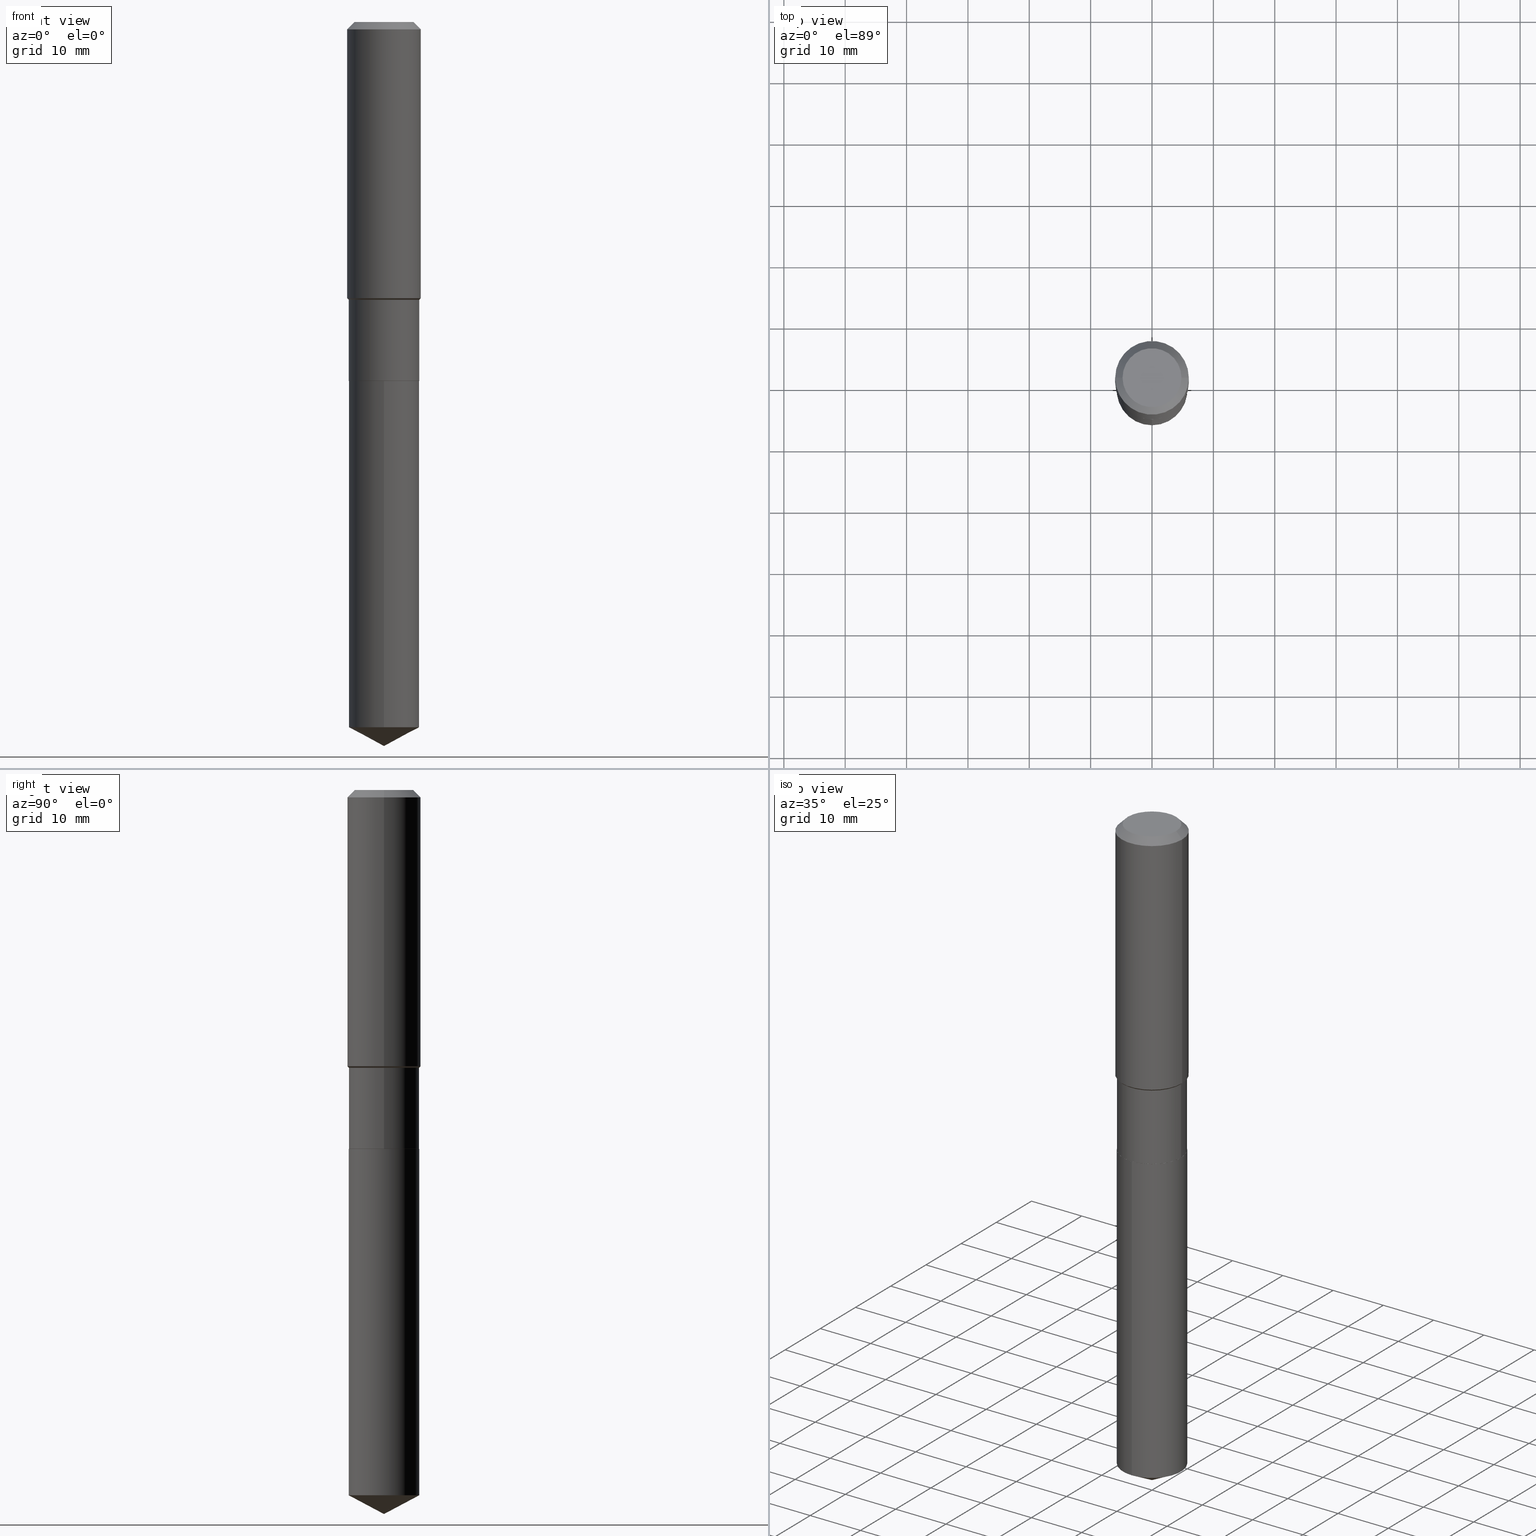
[diagram: canonical four-view strip — front | top / right | iso, engineering-drawing reading convention]
A machine part, canonical four-view strip (front | top / right | iso — engineering-drawing reading convention). The complete STEP part file that produces these views, byte-faithful:
ISO-10303-21;
HEADER;
FILE_DESCRIPTION (( 'STEP AP203' ),
    '1' );
FILE_NAME ('65245.STEP',
    '2024-04-24T21:55:22',
    ( '' ),
    ( '' ),
    'SwSTEP 2.0',
    'SolidWorks 2023',
    '' );
FILE_SCHEMA (( 'CONFIG_CONTROL_DESIGN' ));
ENDSEC;

DATA;
#1 = CARTESIAN_POINT ( 'NONE',  ( 1.608668753760977191E-15, 0.2263999999999919133, -2.303200000000000358 ) ) ;
#2 = VERTEX_POINT ( 'NONE', #14 ) ;
#3 = APPROVAL ( #155, 'UNSPECIFIED' ) ;
#4 = FACE_OUTER_BOUND ( 'NONE', #167, .T. ) ;
#5 = ORIENTED_EDGE ( 'NONE', *, *, #395, .T. ) ;
#6 = LINE ( 'NONE', #344, #192 ) ;
#7 = CARTESIAN_POINT ( 'NONE',  ( -1.580942750228060187E-15, -0.2264000000000157831, -4.525320984671840741 ) ) ;
#8 = VERTEX_POINT ( 'NONE', #369 ) ;
#9 = CONICAL_SURFACE ( 'NONE', #212, 74.04434902938349694, 1.082104136236486269 ) ;
#10 = APPROVAL_PERSON_ORGANIZATION ( #381, #3, #34 ) ;
#11 = ORIENTED_EDGE ( 'NONE', *, *, #360, .T. ) ;
#12 = EDGE_CURVE ( 'NONE', #105, #8, #23, .T. ) ;
#13 = ORIENTED_EDGE ( 'NONE', *, *, #380, .F. ) ;
#14 = CARTESIAN_POINT ( 'NONE',  ( 0.2258999999999999619, -9.619031088512858584E-15, -2.303199999999999470 ) ) ;
#15 = CALENDAR_DATE ( 2024, 24, 4 ) ;
#16 = FACE_OUTER_BOUND ( 'NONE', #315, .T. ) ;
#17 = CIRCLE ( 'NONE', #106, 0.2263999999999999624 ) ;
#18 = APPROVAL_ROLE ( '' ) ;
#19 =( CONVERSION_BASED_UNIT ( 'INCH', #336 ) LENGTH_UNIT ( ) NAMED_UNIT ( #190 ) );
#20 = APPROVAL ( #406, 'UNSPECIFIED' ) ;
#21 = DATE_TIME_ROLE ( 'creation_date' ) ;
#22 = DIRECTION ( 'NONE',  ( -2.445468806185136877E-29, 3.491481338843145188E-15, 1.000000000000000000 ) ) ;
#23 = LINE ( 'NONE', #362, #36 ) ;
#24 = ORIENTED_EDGE ( 'NONE', *, *, #108, .T. ) ;
#25 = CARTESIAN_POINT ( 'NONE',  ( 4.359048147025004325E-29, -6.223565486487904770E-15, -1.782499999999999307 ) ) ;
#26 = AXIS2_PLACEMENT_3D ( 'NONE', #308, #479, #417 ) ;
#27 = EDGE_CURVE ( 'NONE', #38, #343, #179, .T. ) ;
#28 = CIRCLE ( 'NONE', #264, 0.2258999999999999619 ) ;
#29 = CARTESIAN_POINT ( 'NONE',  ( -8.491667500582189501E-28, 1.212405371594979001E-13, 34.72437874015748349 ) ) ;
#30 = CARTESIAN_POINT ( 'NONE',  ( 1.106648869600578829E-28, -1.580013479017961313E-14, -4.525320984671841629 ) ) ;
#31 = DIRECTION ( 'NONE',  ( -2.445468806185136597E-29, 3.491481338843145583E-15, 1.000000000000000000 ) ) ;
#32 = DIRECTION ( 'NONE',  ( -6.982962677686265922E-15, -1.000000000000000000, 2.413293280622141084E-15 ) ) ;
#33 = DIRECTION ( 'NONE',  ( -2.445468806185136877E-29, 3.491481338843145188E-15, 1.000000000000000000 ) ) ;
#34 = APPROVAL_ROLE ( '' ) ;
#35 = DIRECTION ( 'NONE',  ( 1.000000000000000000, -6.982962677686266711E-15, 4.876185090822587894E-29 ) ) ;
#36 = VECTOR ( 'NONE', #175, 39.37007874015748143 ) ;
#37 = AXIS2_PLACEMENT_3D ( 'NONE', #412, #473, #299 ) ;
#38 = VERTEX_POINT ( 'NONE', #58 ) ;
#39 = DIRECTION ( 'NONE',  ( 1.000000000000000000, -6.982962677686266711E-15, 0.000000000000000000 ) ) ;
#40 = ORIENTED_EDGE ( 'NONE', *, *, #193, .F. ) ;
#41 = DIRECTION ( 'NONE',  ( 6.982962677686265922E-15, 1.000000000000000000, -3.491508799059314559E-15 ) ) ;
#42 = LINE ( 'NONE', #387, #326 ) ;
#43 = ORIENTED_EDGE ( 'NONE', *, *, #237, .F. ) ;
#44 = CARTESIAN_POINT ( 'NONE',  ( 0.000000000000000000, 0.000000000000000000, 0.000000000000000000 ) ) ;
#45 = ADVANCED_FACE ( 'NONE', ( #16 ), #477, .T. ) ;
#46 = CONICAL_SURFACE ( 'NONE', #119, 0.2263999999999999069, 0.7853981633974500554 ) ;
#47 = COORDINATED_UNIVERSAL_TIME_OFFSET ( 5, 0, .BEHIND. ) ;
#48 = CC_DESIGN_APPROVAL ( #59, ( #416 ) ) ;
#49 = ORIENTED_EDGE ( 'NONE', *, *, #101, .T. ) ;
#50 = EDGE_CURVE ( 'NONE', #354, #8, #283, .T. ) ;
#51 = CARTESIAN_POINT ( 'NONE',  ( 1.608668753760976994E-15, 0.2263999999999841972, -4.525320984671841629 ) ) ;
#52 = EDGE_LOOP ( 'NONE', ( #49, #87, #318, #220 ) ) ;
#53 = ADVANCED_FACE ( 'NONE', ( #378 ), #150, .T. ) ;
#54 = CARTESIAN_POINT ( 'NONE',  ( 1.136091445384703175E-28, -1.622037593505009449E-14, -4.645699999999999719 ) ) ;
#55 = EDGE_LOOP ( 'NONE', ( #350, #207 ) ) ;
#56 = AXIS2_PLACEMENT_3D ( 'NONE', #427, #131, #39 ) ;
#57 = ORIENTED_EDGE ( 'NONE', *, *, #429, .T. ) ;
#58 = CARTESIAN_POINT ( 'NONE',  ( 0.1889600000000000168, -1.540873453589747738E-15, 3.855188123725863225E-18 ) ) ;
#59 = APPROVAL ( #269, 'UNSPECIFIED' ) ;
#60 = DIRECTION ( 'NONE',  ( -2.445449630818674093E-29, 3.491508799059314165E-15, 1.000000000000000000 ) ) ;
#61 = ORGANIZATION ( 'UNSPECIFIED', 'UNSPECIFIED', '' ) ;
#62 = SECURITY_CLASSIFICATION_LEVEL ( 'unclassified' ) ;
#63 = FACE_OUTER_BOUND ( 'NONE', #458, .T. ) ;
#64 = DATE_AND_TIME ( #266, #202 ) ;
#65 = DIRECTION ( 'NONE',  ( 1.000000000000000000, -6.982962677686269077E-15, 0.000000000000000000 ) ) ;
#66 = EDGE_CURVE ( 'NONE', #8, #354, #383, .T. ) ;
#67 = DIRECTION ( 'NONE',  ( 1.000000000000000000, -6.982962677686265922E-15, 4.876176775795935793E-29 ) ) ;
#68 = CARTESIAN_POINT ( 'NONE',  ( 0.2362000000000002153, -7.838724753836739036E-15, -1.772699999999999054 ) ) ;
#69 = EDGE_LOOP ( 'NONE', ( #85, #403, #57, #172 ) ) ;
#70 = CARTESIAN_POINT ( 'NONE',  ( -0.2263999999999999624, -5.523031028960140857E-15, -2.302699999999999303 ) ) ;
#71 = DIRECTION ( 'NONE',  ( -2.445468806185136597E-29, 3.491481338843145583E-15, 1.000000000000000000 ) ) ;
#72 = ADVANCED_FACE ( 'NONE', ( #187 ), #332, .T. ) ;
#73 = DIRECTION ( 'NONE',  ( -2.445468806185136597E-29, 3.491481338843145583E-15, 1.000000000000000000 ) ) ;
#74 = AXIS2_PLACEMENT_3D ( 'NONE', #317, #90, #396 ) ;
#75 = AXIS2_PLACEMENT_3D ( 'NONE', #29, #60, #182 ) ;
#76 = PERSON_AND_ORGANIZATION_ROLE ( 'design_owner' ) ;
#77 = DIRECTION ( 'NONE',  ( -2.445449630818674093E-29, 3.491508799059314165E-15, 1.000000000000000000 ) ) ;
#78 = MECHANICAL_CONTEXT ( 'NONE', #325, 'mechanical' ) ;
#79 = FACE_OUTER_BOUND ( 'NONE', #55, .T. ) ;
#80 = LINE ( 'NONE', #189, #93 ) ;
#81 = ADVANCED_FACE ( 'NONE', ( #153 ), #111, .T. ) ;
#82 = LINE ( 'NONE', #239, #485 ) ;
#83 = LOCAL_TIME ( 17, 55, 22.00000000000000000, #191 ) ;
#84 = DIRECTION ( 'NONE',  ( 1.000000000000000000, -6.982962677686265922E-15, 0.000000000000000000 ) ) ;
#85 = ORIENTED_EDGE ( 'NONE', *, *, #331, .F. ) ;
#86 = DIRECTION ( 'NONE',  ( -2.445468806185136597E-29, 3.491481338843145583E-15, 1.000000000000000000 ) ) ;
#87 = ORIENTED_EDGE ( 'NONE', *, *, #331, .T. ) ;
#88 = DIRECTION ( 'NONE',  ( -0.7071067811866199593, 7.493145998870616062E-15, 0.7071067811864750752 ) ) ;
#89 = PERSON_AND_ORGANIZATION_ROLE ( 'creator' ) ;
#90 = DIRECTION ( 'NONE',  ( -2.445449630818674093E-29, 3.491508799059314165E-15, 1.000000000000000000 ) ) ;
#91 = ORIENTED_EDGE ( 'NONE', *, *, #443, .F. ) ;
#92 = ADVANCED_FACE ( 'NONE', ( #280 ), #337, .T. ) ;
#93 = VECTOR ( 'NONE', #236, 39.37007874015748143 ) ;
#94 = CIRCLE ( 'NONE', #340, 0.2263999999999999624 ) ;
#95 = CARTESIAN_POINT ( 'NONE',  ( -0.2362000000000002153, -4.511047027501882961E-15, -1.772699999999999054 ) ) ;
#96 = VERTEX_POINT ( 'NONE', #413 ) ;
#97 = ORIENTED_EDGE ( 'NONE', *, *, #66, .F. ) ;
#98 = APPROVAL_DATE_TIME ( #137, #3 ) ;
#99 = CIRCLE ( 'NONE', #177, 0.2263999999999999624 ) ;
#100 = CALENDAR_DATE ( 2024, 24, 4 ) ;
#101 = EDGE_CURVE ( 'NONE', #322, #320, #104, .T. ) ;
#102 = LINE ( 'NONE', #301, #462 ) ;
#103 = SHAPE_DEFINITION_REPRESENTATION ( #168, #203 ) ;
#104 = CIRCLE ( 'NONE', #415, 0.2263999999999999624 ) ;
#105 = VERTEX_POINT ( 'NONE', #188 ) ;
#106 = AXIS2_PLACEMENT_3D ( 'NONE', #466, #294, #65 ) ;
#107 = DATE_AND_TIME ( #15, #346 ) ;
#108 = EDGE_CURVE ( 'NONE', #105, #359, #99, .T. ) ;
#109 = LINE ( 'NONE', #323, #401 ) ;
#110 = CARTESIAN_POINT ( 'NONE',  ( 0.2361999999999999933, -1.814313362916447440E-15, -0.04724000000000028177 ) ) ;
#111 = CYLINDRICAL_SURFACE ( 'NONE', #249, 0.2263999999999999346 ) ;
#112 = CARTESIAN_POINT ( 'NONE',  ( -1.580942750228114224E-15, -0.2264000000000080115, -2.303199999999998582 ) ) ;
#113 = ORIENTED_EDGE ( 'NONE', *, *, #393, .F. ) ;
#114 =( NAMED_UNIT ( * ) PLANE_ANGLE_UNIT ( ) SI_UNIT ( $, .RADIAN. ) );
#115 = PERSON ( 'UNSPECIFIED', 'UNSPECIFIED', 'UNSPECIFIED', ('UNSPECIFIED'), ('UNSPECIFIED'), ('UNSPECIFIED') ) ;
#116 = CARTESIAN_POINT ( 'NONE',  ( 5.632403754405604963E-29, -8.041579819623531161E-15, -2.303199999999999470 ) ) ;
#117 = ADVANCED_FACE ( 'NONE', ( #79 ), #235, .F. ) ;
#118 = DIRECTION ( 'NONE',  ( -2.445468806185136597E-29, 3.491481338843145583E-15, 1.000000000000000000 ) ) ;
#119 = AXIS2_PLACEMENT_3D ( 'NONE', #166, #86, #84 ) ;
#120 = DIRECTION ( 'NONE',  ( 1.000000000000000000, -6.982962677686265922E-15, 0.000000000000000000 ) ) ;
#121 = CARTESIAN_POINT ( 'NONE',  ( 5.632403754405604963E-29, -8.041579819623531161E-15, -2.303199999999999470 ) ) ;
#122 = EDGE_CURVE ( 'NONE', #96, #359, #6, .T. ) ;
#123 = DIRECTION ( 'NONE',  ( 1.000000000000000000, -6.982962677686266711E-15, 4.876176775795935793E-29 ) ) ;
#124 = APPLICATION_PROTOCOL_DEFINITION ( 'international standard', 'config_control_design', 1994, #325 ) ;
#125 = EDGE_LOOP ( 'NONE', ( #399, #135, #91 ) ) ;
#126 = VECTOR ( 'NONE', #136, 39.37007874015748143 ) ;
#127 = DIRECTION ( 'NONE',  ( 1.000000000000000000, -6.982962677686266711E-15, 0.000000000000000000 ) ) ;
#128 = ORIENTED_EDGE ( 'NONE', *, *, #122, .T. ) ;
#129 = ADVANCED_FACE ( 'NONE', ( #358 ), #456, .T. ) ;
#130 = ORIENTED_EDGE ( 'NONE', *, *, #198, .T. ) ;
#131 = DIRECTION ( 'NONE',  ( -2.445468806185136597E-29, 3.491481338843145583E-15, 1.000000000000000000 ) ) ;
#132 = EDGE_LOOP ( 'NONE', ( #11, #448 ) ) ;
#133 = EDGE_CURVE ( 'NONE', #2, #96, #263, .T. ) ;
#134 = ORIENTED_EDGE ( 'NONE', *, *, #395, .F. ) ;
#135 = ORIENTED_EDGE ( 'NONE', *, *, #237, .T. ) ;
#136 = DIRECTION ( 'NONE',  ( -2.445449630818674093E-29, 3.491508799059314559E-15, 1.000000000000000000 ) ) ;
#137 = DATE_AND_TIME ( #452, #83 ) ;
#138 = ADVANCED_FACE ( 'NONE', ( #156 ), #486, .F. ) ;
#139 = CC_DESIGN_APPROVAL ( #20, ( #296 ) ) ;
#140 = COORDINATED_UNIVERSAL_TIME_OFFSET ( 5, 0, .BEHIND. ) ;
#141 = ADVANCED_FACE ( 'NONE', ( #481 ), #414, .T. ) ;
#142 = ORIENTED_EDGE ( 'NONE', *, *, #159, .F. ) ;
#143 = DIRECTION ( 'NONE',  ( 1.000000000000000000, -6.982962677686266711E-15, 4.876185090822587894E-29 ) ) ;
#144 = EDGE_CURVE ( 'NONE', #254, #158, #374, .T. ) ;
#145 = DIRECTION ( 'NONE',  ( -2.445449630818674093E-29, 3.491508799059314165E-15, 1.000000000000000000 ) ) ;
#146 = CIRCLE ( 'NONE', #357, 0.2361999999999999933 ) ;
#147 = CARTESIAN_POINT ( 'NONE',  ( -1.580942750228114224E-15, -0.2264000000000080115, -2.303199999999998582 ) ) ;
#148 = CARTESIAN_POINT ( 'NONE',  ( 4.359048147025004325E-29, -6.223565486487904770E-15, -1.782499999999999307 ) ) ;
#149 = DIRECTION ( 'NONE',  ( -2.445449630818674093E-29, 3.491508799059314559E-15, 1.000000000000000000 ) ) ;
#150 = CYLINDRICAL_SURFACE ( 'NONE', #26, 0.2362000000000001043 ) ;
#151 = DIRECTION ( 'NONE',  ( 1.000000000000000000, -6.982962677686266711E-15, 0.000000000000000000 ) ) ;
#152 = CC_DESIGN_DATE_AND_TIME_ASSIGNMENT ( #64, #364, ( #416 ) ) ;
#153 = FACE_OUTER_BOUND ( 'NONE', #388, .T. ) ;
#154 = VECTOR ( 'NONE', #368, 39.37007874015748143 ) ;
#155 = APPROVAL_STATUS ( 'not_yet_approved' ) ;
#156 = FACE_OUTER_BOUND ( 'NONE', #352, .T. ) ;
#157 = DIRECTION ( 'NONE',  ( -0.7071067811865486830, 7.493145998870357316E-15, 0.7071067811865462405 ) ) ;
#158 = VERTEX_POINT ( 'NONE', #112 ) ;
#159 = EDGE_CURVE ( 'NONE', #38, #252, #437, .T. ) ;
#160 = ORIENTED_EDGE ( 'NONE', *, *, #66, .T. ) ;
#161 = AXIS2_PLACEMENT_3D ( 'NONE', #185, #305, #231 ) ;
#162 = AXIS2_PLACEMENT_3D ( 'NONE', #199, #419, #275 ) ;
#163 = DIRECTION ( 'NONE',  ( -6.165590087286832874E-15, -0.8829475928589261002, 0.4694715627858920826 ) ) ;
#164 = ORIENTED_EDGE ( 'NONE', *, *, #165, .T. ) ;
#165 = EDGE_CURVE ( 'NONE', #359, #354, #379, .T. ) ;
#166 = CARTESIAN_POINT ( 'NONE',  ( 4.359048147025004325E-29, -6.223565486487904770E-15, -1.782499999999999307 ) ) ;
#167 = EDGE_LOOP ( 'NONE', ( #455, #256, #342, #13 ) ) ;
#168 = PRODUCT_DEFINITION_SHAPE ( 'NONE', 'NONE',  #389 ) ;
#169 = DIRECTION ( 'NONE',  ( -1.000000000000000000, 6.982962677686266711E-15, 0.000000000000000000 ) ) ;
#170 = ORIENTED_EDGE ( 'NONE', *, *, #380, .T. ) ;
#171 = AXIS2_PLACEMENT_3D ( 'NONE', #279, #118, #35 ) ;
#172 = ORIENTED_EDGE ( 'NONE', *, *, #144, .F. ) ;
#173 = CARTESIAN_POINT ( 'NONE',  ( 5.632403754405604963E-29, -8.041579819623531161E-15, -2.303199999999999470 ) ) ;
#174 = CARTESIAN_POINT ( 'NONE',  ( 0.2361999999999999933, -1.785387205520586782E-15, -0.04724000000000028177 ) ) ;
#175 = DIRECTION ( 'NONE',  ( -2.445468806185136877E-29, 3.491481338843145188E-15, 1.000000000000000000 ) ) ;
#176 = EDGE_CURVE ( 'NONE', #306, #480, #80, .T. ) ;
#177 = AXIS2_PLACEMENT_3D ( 'NONE', #483, #309, #451 ) ;
#178 = DIRECTION ( 'NONE',  ( 1.000000000000000000, -6.982962677686266711E-15, 0.000000000000000000 ) ) ;
#179 = LINE ( 'NONE', #174, #339 ) ;
#180 = ADVANCED_FACE ( 'NONE', ( #382 ), #311, .F. ) ;
#181 = PERSON_AND_ORGANIZATION_ROLE ( 'design_supplier' ) ;
#182 = DIRECTION ( 'NONE',  ( -6.982962677686265133E-15, -1.000000000000000000, 3.541896320645562841E-15 ) ) ;
#183 = AXIS2_PLACEMENT_3D ( 'NONE', #121, #268, #281 ) ;
#184 = AXIS2_PLACEMENT_3D ( 'NONE', #334, #370, #143 ) ;
#185 = CARTESIAN_POINT ( 'NONE',  ( 5.632403754405604963E-29, -8.041579819623531161E-15, -2.303199999999999470 ) ) ;
#186 = CARTESIAN_POINT ( 'NONE',  ( 1.136082534989431357E-28, -1.622050242778985348E-14, -4.645699999999999719 ) ) ;
#187 = FACE_OUTER_BOUND ( 'NONE', #347, .T. ) ;
#188 = CARTESIAN_POINT ( 'NONE',  ( 0.2263999999999999624, -9.620776829182280876E-15, -2.302699999999999303 ) ) ;
#189 = CARTESIAN_POINT ( 'NONE',  ( -0.2362000000000001043, 1.678301941865357380E-15, -1.161852468318209317E-29 ) ) ;
#190 = DIMENSIONAL_EXPONENTS ( 1.000000000000000000, 0.000000000000000000, 0.000000000000000000, 0.000000000000000000, 0.000000000000000000, 0.000000000000000000, 0.000000000000000000 ) ;
#191 = COORDINATED_UNIVERSAL_TIME_OFFSET ( 5, 0, .BEHIND. ) ;
#192 = VECTOR ( 'NONE', #88, 39.37007874015748143 ) ;
#193 = EDGE_CURVE ( 'NONE', #8, #200, #82, .T. ) ;
#194 = DIRECTION ( 'NONE',  ( 0.7071067811865486830, -2.468850131082269682E-15, 0.7071067811865462405 ) ) ;
#195 = ORIENTED_EDGE ( 'NONE', *, *, #12, .F. ) ;
#196 = CARTESIAN_POINT ( 'NONE',  ( 1.155239464041865506E-30, -1.649375784469511859E-16, -0.04724000000000028177 ) ) ;
#197 = ORIENTED_EDGE ( 'NONE', *, *, #165, .F. ) ;
#198 = EDGE_CURVE ( 'NONE', #354, #306, #411, .T. ) ;
#199 = CARTESIAN_POINT ( 'NONE',  ( 0.000000000000000000, 0.000000000000000000, 0.000000000000000000 ) ) ;
#200 = VERTEX_POINT ( 'NONE', #68 ) ;
#201 = AXIS2_PLACEMENT_3D ( 'NONE', #349, #253, #127 ) ;
#202 = LOCAL_TIME ( 17, 55, 22.00000000000000000, #408 ) ;
#203 = ADVANCED_BREP_SHAPE_REPRESENTATION ( '65245', ( #402, #242, #162 ), #240 ) ;
#204 = CARTESIAN_POINT ( 'NONE',  ( -0.1889600000000000168, 1.401969416799070942E-15, 3.855188123706346622E-18 ) ) ;
#205 = ORIENTED_EDGE ( 'NONE', *, *, #122, .F. ) ;
#206 = FACE_OUTER_BOUND ( 'NONE', #274, .T. ) ;
#207 = ORIENTED_EDGE ( 'NONE', *, *, #144, .T. ) ;
#208 = FACE_OUTER_BOUND ( 'NONE', #125, .T. ) ;
#209 = ORIENTED_EDGE ( 'NONE', *, *, #295, .T. ) ;
#210 = FACE_OUTER_BOUND ( 'NONE', #460, .T. ) ;
#211 = AXIS2_PLACEMENT_3D ( 'NONE', #233, #484, #151 ) ;
#212 = AXIS2_PLACEMENT_3D ( 'NONE', #424, #246, #288 ) ;
#213 = EDGE_LOOP ( 'NONE', ( #24, #164, #97, #195 ) ) ;
#214 = PERSON_AND_ORGANIZATION_ROLE ( 'creator' ) ;
#215 = PERSON_AND_ORGANIZATION ( #115, #61 ) ;
#216 = VECTOR ( 'NONE', #157, 39.37007874015748854 ) ;
#217 = VECTOR ( 'NONE', #33, 39.37007874015748143 ) ;
#218 = DIRECTION ( 'NONE',  ( -1.000000000000000000, 6.982962677686266711E-15, 0.000000000000000000 ) ) ;
#219 = APPROVAL_PERSON_ORGANIZATION ( #259, #20, #18 ) ;
#220 = ORIENTED_EDGE ( 'NONE', *, *, #429, .F. ) ;
#221 = APPROVAL_ROLE ( '' ) ;
#222 =( LENGTH_UNIT ( ) NAMED_UNIT ( * ) SI_UNIT ( $, .METRE. ) );
#223 = ADVANCED_FACE ( 'NONE', ( #372 ), #377, .T. ) ;
#224 = CARTESIAN_POINT ( 'NONE',  ( 1.608668753760922760E-15, 0.2263999999999919410, -2.303200000000000358 ) ) ;
#225 = DIRECTION ( 'NONE',  ( -6.982962677686265922E-15, -1.000000000000000000, 3.619939920933211627E-15 ) ) ;
#226 = DIRECTION ( 'NONE',  ( -1.000000000000000000, 6.982962677686265922E-15, -4.876176775795935793E-29 ) ) ;
#227 = ORIENTED_EDGE ( 'NONE', *, *, #50, .F. ) ;
#228 = DIRECTION ( 'NONE',  ( -2.445468806185136597E-29, 3.491481338843145583E-15, 1.000000000000000000 ) ) ;
#229 = AXIS2_PLACEMENT_3D ( 'NONE', #282, #422, #226 ) ;
#230 = CARTESIAN_POINT ( 'NONE',  ( 5.632403754405604963E-29, -8.041579819623531161E-15, -2.303199999999999470 ) ) ;
#231 = DIRECTION ( 'NONE',  ( -6.982962677686265922E-15, -1.000000000000000000, 3.619939920933211627E-15 ) ) ;
#232 = DIRECTION ( 'NONE',  ( -2.445449630818674093E-29, 3.491508799059314165E-15, 1.000000000000000000 ) ) ;
#233 = CARTESIAN_POINT ( 'NONE',  ( 5.632403754405604963E-29, -8.041579819623531161E-15, -2.303199999999999470 ) ) ;
#234 = APPLICATION_PROTOCOL_DEFINITION ( 'international standard', 'config_control_design', 1994, #457 ) ;
#235 = PLANE ( 'NONE',  #356 ) ;
#236 = DIRECTION ( 'NONE',  ( -2.445468806185136877E-29, 3.491481338843145188E-15, 1.000000000000000000 ) ) ;
#237 = EDGE_CURVE ( 'NONE', #432, #322, #42, .T. ) ;
#238 = AXIS2_PLACEMENT_3D ( 'NONE', #272, #77, #225 ) ;
#239 = CARTESIAN_POINT ( 'NONE',  ( 0.2263999999999999069, -7.804508236716074411E-15, -1.782499999999999307 ) ) ;
#240 =( GEOMETRIC_REPRESENTATION_CONTEXT ( 3 ) GLOBAL_UNCERTAINTY_ASSIGNED_CONTEXT ( ( #245 ) ) GLOBAL_UNIT_ASSIGNED_CONTEXT ( ( #19, #114, #355 ) ) REPRESENTATION_CONTEXT ( 'NONE', 'WORKASPACE' ) );
#241 = ORIENTED_EDGE ( 'NONE', *, *, #353, .F. ) ;
#242 = MANIFOLD_SOLID_BREP ( 'Body-Move/Copy2[2]', #430 ) ;
#243 = CC_DESIGN_PERSON_AND_ORGANIZATION_ASSIGNMENT ( #367, #475, ( #416 ) ) ;
#244 = ORIENTED_EDGE ( 'NONE', *, *, #474, .T. ) ;
#245 = UNCERTAINTY_MEASURE_WITH_UNIT (LENGTH_MEASURE( 1.000000000000000082E-05 ), #19, 'distance_accuracy_value', 'NONE');
#246 = DIRECTION ( 'NONE',  ( -2.445449630818674093E-29, 3.491508799059314165E-15, 1.000000000000000000 ) ) ;
#247 = EDGE_LOOP ( 'NONE', ( #433, #170, #435, #366 ) ) ;
#248 = EDGE_LOOP ( 'NONE', ( #472, #128, #290, #241 ) ) ;
#249 = AXIS2_PLACEMENT_3D ( 'NONE', #447, #420, #67 ) ;
#250 = ADVANCED_FACE ( 'NONE', ( #313 ), #345, .T. ) ;
#251 = AXIS2_PLACEMENT_3D ( 'NONE', #270, #329, #178 ) ;
#252 = VERTEX_POINT ( 'NONE', #204 ) ;
#253 = DIRECTION ( 'NONE',  ( -2.445468806185136597E-29, 3.491481338843145583E-15, 1.000000000000000000 ) ) ;
#254 = VERTEX_POINT ( 'NONE', #1 ) ;
#255 = EDGE_CURVE ( 'NONE', #432, #320, #286, .T. ) ;
#256 = ORIENTED_EDGE ( 'NONE', *, *, #50, .T. ) ;
#257 = CLOSED_SHELL ( 'NONE', ( #92, #371, #271, #223, #117 ) ) ;
#258 = VECTOR ( 'NONE', #149, 39.37007874015748143 ) ;
#259 = PERSON_AND_ORGANIZATION ( #115, #61 ) ;
#260 = ORIENTED_EDGE ( 'NONE', *, *, #27, .T. ) ;
#261 = COORDINATED_UNIVERSAL_TIME_OFFSET ( 5, 0, .BEHIND. ) ;
#262 = ADVANCED_FACE ( 'NONE', ( #4 ), #46, .T. ) ;
#263 = CIRCLE ( 'NONE', #211, 0.2258999999999999619 ) ;
#264 = AXIS2_PLACEMENT_3D ( 'NONE', #173, #409, #445 ) ;
#265 = LINE ( 'NONE', #147, #126 ) ;
#266 = CALENDAR_DATE ( 2024, 24, 4 ) ;
#267 = DIRECTION ( 'NONE',  ( -0.7071067811865453523, 2.468850131082234184E-15, -0.7071067811865496822 ) ) ;
#268 = DIRECTION ( 'NONE',  ( -2.438088387897960049E-29, 3.491481338843145188E-15, 1.000000000000000000 ) ) ;
#269 = APPROVAL_STATUS ( 'not_yet_approved' ) ;
#270 = CARTESIAN_POINT ( 'NONE',  ( 4.335082552724389227E-29, -6.189348969367240933E-15, -1.772699999999999054 ) ) ;
#271 = ADVANCED_FACE ( 'NONE', ( #208 ), #9, .T. ) ;
#272 = CARTESIAN_POINT ( 'NONE',  ( 5.632403754405604963E-29, -8.041579819623531161E-15, -2.303199999999999470 ) ) ;
#273 = CARTESIAN_POINT ( 'NONE',  ( -0.2263999999999999346, 1.608668753760866356E-15, -1.113646904433710280E-29 ) ) ;
#274 = EDGE_LOOP ( 'NONE', ( #142, #260, #285, #392 ) ) ;
#275 = DIRECTION ( 'NONE',  ( 1.000000000000000000, 0.000000000000000000, 0.000000000000000000 ) ) ;
#276 = AXIS2_PLACEMENT_3D ( 'NONE', #421, #31, #453 ) ;
#277 = DIRECTION ( 'NONE',  ( -2.445468806185136597E-29, 3.491481338843145583E-15, 1.000000000000000000 ) ) ;
#278 = LOCAL_TIME ( 17, 55, 22.00000000000000000, #140 ) ;
#279 = CARTESIAN_POINT ( 'NONE',  ( -9.427742298522546243E-47, 1.346031739168365344E-32, 3.855188123715862256E-18 ) ) ;
#280 = FACE_OUTER_BOUND ( 'NONE', #52, .T. ) ;
#281 = DIRECTION ( 'NONE',  ( 1.000000000000000000, -6.982962677686265922E-15, 4.876176775795935793E-29 ) ) ;
#282 = CARTESIAN_POINT ( 'NONE',  ( -4.713871149261273121E-47, 6.730158695841826722E-33, 1.927594061857931128E-18 ) ) ;
#283 = CIRCLE ( 'NONE', #312, 0.2263999999999999069 ) ;
#284 = AXIS2_PLACEMENT_3D ( 'NONE', #404, #441, #218 ) ;
#285 = ORIENTED_EDGE ( 'NONE', *, *, #468, .T. ) ;
#286 = LINE ( 'NONE', #54, #469 ) ;
#287 = ORIENTED_EDGE ( 'NONE', *, *, #295, .F. ) ;
#288 = DIRECTION ( 'NONE',  ( -6.982962677686265133E-15, -1.000000000000000000, 3.541896320645562841E-15 ) ) ;
#289 = DIRECTION ( 'NONE',  ( -2.445468806185136597E-29, 3.491481338843145583E-15, 1.000000000000000000 ) ) ;
#290 = ORIENTED_EDGE ( 'NONE', *, *, #108, .F. ) ;
#291 = CONICAL_SURFACE ( 'NONE', #478, 0.2361999999999999933, 0.7853981633974452814 ) ;
#292 = ORIENTED_EDGE ( 'NONE', *, *, #133, .F. ) ;
#293 = ORIENTED_EDGE ( 'NONE', *, *, #255, .T. ) ;
#294 = DIRECTION ( 'NONE',  ( -2.445468806185136597E-29, 3.491481338843145583E-15, 1.000000000000000000 ) ) ;
#295 = EDGE_CURVE ( 'NONE', #200, #306, #363, .T. ) ;
#296 = PRODUCT_DEFINITION_FORMATION_WITH_SPECIFIED_SOURCE ( 'ANY', '', #316, .NOT_KNOWN. ) ;
#297 = APPROVAL_DATE_TIME ( #439, #59 ) ;
#298 = EDGE_LOOP ( 'NONE', ( #209, #465, #394, #113 ) ) ;
#299 = DIRECTION ( 'NONE',  ( -6.982962677686265922E-15, -1.000000000000000000, 2.413293280622141084E-15 ) ) ;
#300 = CIRCLE ( 'NONE', #37, 0.2263999999999999624 ) ;
#301 = CARTESIAN_POINT ( 'NONE',  ( 0.2362000000000001043, -1.649375784469496920E-15, 1.151752954443000508E-29 ) ) ;
#302 = EDGE_CURVE ( 'NONE', #480, #343, #146, .T. ) ;
#303 = CARTESIAN_POINT ( 'NONE',  ( 5.632403754405604963E-29, -8.041579819623531161E-15, -2.303199999999999470 ) ) ;
#304 = DIRECTION ( 'NONE',  ( -2.445468806185136597E-29, 3.491481338843145583E-15, 1.000000000000000000 ) ) ;
#305 = DIRECTION ( 'NONE',  ( -2.445449630818674093E-29, 3.491508799059314165E-15, 1.000000000000000000 ) ) ;
#306 = VERTEX_POINT ( 'NONE', #95 ) ;
#307 = CC_DESIGN_PERSON_AND_ORGANIZATION_ASSIGNMENT ( #440, #214, ( #296 ) ) ;
#308 = CARTESIAN_POINT ( 'NONE',  ( 0.000000000000000000, 0.000000000000000000, 0.000000000000000000 ) ) ;
#309 = DIRECTION ( 'NONE',  ( -2.445468806185136597E-29, 3.491481338843145583E-15, 1.000000000000000000 ) ) ;
#310 = LOCAL_TIME ( 17, 55, 22.00000000000000000, #47 ) ;
#311 = PLANE ( 'NONE',  #229 ) ;
#312 = AXIS2_PLACEMENT_3D ( 'NONE', #25, #71, #120 ) ;
#313 = FACE_OUTER_BOUND ( 'NONE', #248, .T. ) ;
#314 = ORIENTED_EDGE ( 'NONE', *, *, #353, .T. ) ;
#315 = EDGE_LOOP ( 'NONE', ( #160, #130, #287, #40 ) ) ;
#316 = PRODUCT ( '65245', '65245', '', ( #78 ) ) ;
#317 = CARTESIAN_POINT ( 'NONE',  ( 5.632403754405604963E-29, -8.041579819623531161E-15, -2.303199999999999470 ) ) ;
#318 = ORIENTED_EDGE ( 'NONE', *, *, #436, .F. ) ;
#319 = CARTESIAN_POINT ( 'NONE',  ( 1.155239464041865506E-30, -1.649375784469511859E-16, -0.04724000000000028177 ) ) ;
#320 = VERTEX_POINT ( 'NONE', #51 ) ;
#321 = CIRCLE ( 'NONE', #438, 0.2361999999999999933 ) ;
#322 = VERTEX_POINT ( 'NONE', #7 ) ;
#323 = CARTESIAN_POINT ( 'NONE',  ( -0.2361999999999999933, 1.484438206022545019E-15, -0.04724000000000028177 ) ) ;
#324 = ADVANCED_FACE ( 'NONE', ( #206 ), #291, .T. ) ;
#325 = APPLICATION_CONTEXT ( 'configuration controlled 3d designs of mechanical parts and assemblies' ) ;
#326 = VECTOR ( 'NONE', #163, 39.37007874015748854 ) ;
#327 = CC_DESIGN_PERSON_AND_ORGANIZATION_ASSIGNMENT ( #215, #181, ( #296 ) ) ;
#328 = CARTESIAN_POINT ( 'NONE',  ( 4.359048147025004325E-29, -6.223565486487904770E-15, -1.782499999999999307 ) ) ;
#329 = DIRECTION ( 'NONE',  ( -2.445468806185136597E-29, 3.491481338843145583E-15, 1.000000000000000000 ) ) ;
#330 = DIRECTION ( 'NONE',  ( 1.000000000000000000, -6.982962677686266711E-15, 0.000000000000000000 ) ) ;
#331 = EDGE_CURVE ( 'NONE', #320, #254, #463, .T. ) ;
#332 = CONICAL_SURFACE ( 'NONE', #400, 0.2258999999999999619, 0.7853981633975507526 ) ;
#333 = CONICAL_SURFACE ( 'NONE', #75, 74.04434902938349694, 1.082104136236486269 ) ;
#334 = CARTESIAN_POINT ( 'NONE',  ( -9.427742298522546243E-47, 1.346031739168365344E-32, 3.855188123715862256E-18 ) ) ;
#335 = DIRECTION ( 'NONE',  ( 1.000000000000000000, -6.982962677686265922E-15, 0.000000000000000000 ) ) ;
#336 = LENGTH_MEASURE_WITH_UNIT ( LENGTH_MEASURE( 0.02539999999999999897 ), #222 );
#337 = CYLINDRICAL_SURFACE ( 'NONE', #238, 0.2263999999999999624 ) ;
#338 = DIRECTION ( 'NONE',  ( 1.000000000000000000, -6.982962677686266711E-15, 0.000000000000000000 ) ) ;
#339 = VECTOR ( 'NONE', #467, 39.37007874015748143 ) ;
#340 = AXIS2_PLACEMENT_3D ( 'NONE', #303, #145, #442 ) ;
#341 = CARTESIAN_POINT ( 'NONE',  ( -0.2263999999999999069, -4.614896732727038413E-15, -1.782499999999999307 ) ) ;
#342 = ORIENTED_EDGE ( 'NONE', *, *, #193, .T. ) ;
#343 = VERTEX_POINT ( 'NONE', #110 ) ;
#344 = CARTESIAN_POINT ( 'NONE',  ( -0.2258999999999999619, -6.436463779541464126E-15, -2.303199999999999470 ) ) ;
#345 = CONICAL_SURFACE ( 'NONE', #201, 0.2258999999999999619, 0.7853981633975507526 ) ;
#346 = LOCAL_TIME ( 17, 55, 22.00000000000000000, #261 ) ;
#347 = EDGE_LOOP ( 'NONE', ( #205, #5, #314, #464 ) ) ;
#348 = CALENDAR_DATE ( 2024, 24, 4 ) ;
#349 = CARTESIAN_POINT ( 'NONE',  ( 5.632403754405604963E-29, -8.041579819623531161E-15, -2.303199999999999470 ) ) ;
#350 = ORIENTED_EDGE ( 'NONE', *, *, #436, .T. ) ;
#351 = DIRECTION ( 'NONE',  ( 2.445468806185136597E-29, -3.491481338843145583E-15, -1.000000000000000000 ) ) ;
#352 = EDGE_LOOP ( 'NONE', ( #292, #134 ) ) ;
#353 = EDGE_CURVE ( 'NONE', #2, #105, #476, .T. ) ;
#354 = VERTEX_POINT ( 'NONE', #446 ) ;
#355 =( NAMED_UNIT ( * ) SI_UNIT ( $, .STERADIAN. ) SOLID_ANGLE_UNIT ( ) );
#356 = AXIS2_PLACEMENT_3D ( 'NONE', #230, #398, #41 ) ;
#357 = AXIS2_PLACEMENT_3D ( 'NONE', #196, #289, #431 ) ;
#358 = FACE_OUTER_BOUND ( 'NONE', #247, .T. ) ;
#359 = VERTEX_POINT ( 'NONE', #70 ) ;
#360 = EDGE_CURVE ( 'NONE', #252, #38, #391, .T. ) ;
#361 = DATE_AND_TIME ( #348, #310 ) ;
#362 = CARTESIAN_POINT ( 'NONE',  ( 0.2263999999999999346, -1.580942750228170233E-15, 1.103966422040199590E-29 ) ) ;
#363 = CIRCLE ( 'NONE', #56, 0.2362000000000002153 ) ;
#364 = DATE_TIME_ROLE ( 'classification_date' ) ;
#365 = CARTESIAN_POINT ( 'NONE',  ( 1.155239464041865506E-30, -1.649375784469511859E-16, -0.04724000000000028177 ) ) ;
#366 = ORIENTED_EDGE ( 'NONE', *, *, #302, .F. ) ;
#367 = PERSON_AND_ORGANIZATION ( #115, #61 ) ;
#368 = DIRECTION ( 'NONE',  ( 0.7071067811866199593, -2.468850131083015945E-15, 0.7071067811864750752 ) ) ;
#369 = CARTESIAN_POINT ( 'NONE',  ( 0.2263999999999999069, -7.804508236716074411E-15, -1.782499999999999307 ) ) ;
#370 = DIRECTION ( 'NONE',  ( -2.445468806185136597E-29, 3.491481338843145583E-15, 1.000000000000000000 ) ) ;
#371 = ADVANCED_FACE ( 'NONE', ( #63 ), #333, .T. ) ;
#372 = FACE_OUTER_BOUND ( 'NONE', #69, .T. ) ;
#373 = ORIENTED_EDGE ( 'NONE', *, *, #302, .T. ) ;
#374 = CIRCLE ( 'NONE', #161, 0.2263999999999999624 ) ;
#375 = CARTESIAN_POINT ( 'NONE',  ( -0.2361999999999999933, -1.498841332041738346E-15, -0.04724000000000028177 ) ) ;
#376 = DIRECTION ( 'NONE',  ( 1.000000000000000000, -6.982962677686265922E-15, 0.000000000000000000 ) ) ;
#377 = CYLINDRICAL_SURFACE ( 'NONE', #74, 0.2263999999999999624 ) ;
#378 = FACE_OUTER_BOUND ( 'NONE', #298, .T. ) ;
#379 = LINE ( 'NONE', #273, #217 ) ;
#380 = EDGE_CURVE ( 'NONE', #306, #200, #423, .T. ) ;
#381 = PERSON_AND_ORGANIZATION ( #115, #61 ) ;
#382 = FACE_OUTER_BOUND ( 'NONE', #132, .T. ) ;
#383 = CIRCLE ( 'NONE', #450, 0.2263999999999999069 ) ;
#384 = PERSON_AND_ORGANIZATION ( #115, #61 ) ;
#385 = CONICAL_SURFACE ( 'NONE', #284, 0.2361999999999999933, 0.7853981633974452814 ) ;
#386 = ADVANCED_FACE ( 'NONE', ( #210 ), #385, .T. ) ;
#387 = CARTESIAN_POINT ( 'NONE',  ( 1.136082534989431357E-28, -1.622050242778985348E-14, -4.645699999999999719 ) ) ;
#388 = EDGE_LOOP ( 'NONE', ( #197, #397, #426, #227 ) ) ;
#389 = PRODUCT_DEFINITION ( 'UNKNOWN', '', #296, #434 ) ;
#390 = PERSON_AND_ORGANIZATION ( #115, #61 ) ;
#391 = CIRCLE ( 'NONE', #184, 0.1889600000000000168 ) ;
#392 = ORIENTED_EDGE ( 'NONE', *, *, #474, .F. ) ;
#393 = EDGE_CURVE ( 'NONE', #200, #343, #102, .T. ) ;
#394 = ORIENTED_EDGE ( 'NONE', *, *, #468, .F. ) ;
#395 = EDGE_CURVE ( 'NONE', #96, #2, #28, .T. ) ;
#396 = DIRECTION ( 'NONE',  ( -6.982962677686265922E-15, -1.000000000000000000, 3.619939920933211627E-15 ) ) ;
#397 = ORIENTED_EDGE ( 'NONE', *, *, #482, .T. ) ;
#398 = DIRECTION ( 'NONE',  ( 2.445449630818673252E-29, -3.491508799059314559E-15, -1.000000000000000000 ) ) ;
#399 = ORIENTED_EDGE ( 'NONE', *, *, #255, .F. ) ;
#400 = AXIS2_PLACEMENT_3D ( 'NONE', #116, #277, #338 ) ;
#401 = VECTOR ( 'NONE', #267, 39.37007874015748143 ) ;
#402 = MANIFOLD_SOLID_BREP ( 'Body-Move/Copy2[1]', #257 ) ;
#403 = ORIENTED_EDGE ( 'NONE', *, *, #443, .T. ) ;
#404 = CARTESIAN_POINT ( 'NONE',  ( 1.155239464041865506E-30, -1.649375784469511859E-16, -0.04724000000000028177 ) ) ;
#405 = CC_DESIGN_SECURITY_CLASSIFICATION ( #416, ( #296 ) ) ;
#406 = APPROVAL_STATUS ( 'not_yet_approved' ) ;
#407 = CARTESIAN_POINT ( 'NONE',  ( 0.2258999999999999619, -9.619031088512858584E-15, -2.303199999999999470 ) ) ;
#408 = COORDINATED_UNIVERSAL_TIME_OFFSET ( 5, 0, .BEHIND. ) ;
#409 = DIRECTION ( 'NONE',  ( -2.445468806185136597E-29, 3.491481338843145583E-15, 1.000000000000000000 ) ) ;
#410 = CC_DESIGN_DATE_AND_TIME_ASSIGNMENT ( #361, #21, ( #389 ) ) ;
#411 = LINE ( 'NONE', #341, #216 ) ;
#412 = CARTESIAN_POINT ( 'NONE',  ( 1.106648869600578829E-28, -1.580013479017961313E-14, -4.525320984671841629 ) ) ;
#413 = CARTESIAN_POINT ( 'NONE',  ( -0.2258999999999999619, -6.433814552367353714E-15, -2.303199999999999470 ) ) ;
#414 = CYLINDRICAL_SURFACE ( 'NONE', #276, 0.2263999999999999346 ) ;
#415 = AXIS2_PLACEMENT_3D ( 'NONE', #30, #232, #32 ) ;
#416 = SECURITY_CLASSIFICATION ( '', '', #62 ) ;
#417 = DIRECTION ( 'NONE',  ( 1.000000000000000000, -6.982962677686266711E-15, 4.876176775795935793E-29 ) ) ;
#418 = CC_DESIGN_PERSON_AND_ORGANIZATION_ASSIGNMENT ( #390, #89, ( #389 ) ) ;
#419 = DIRECTION ( 'NONE',  ( 0.000000000000000000, 0.000000000000000000, 1.000000000000000000 ) ) ;
#420 = DIRECTION ( 'NONE',  ( -2.445468806185136597E-29, 3.491481338843145583E-15, 1.000000000000000000 ) ) ;
#421 = CARTESIAN_POINT ( 'NONE',  ( 0.000000000000000000, 0.000000000000000000, 0.000000000000000000 ) ) ;
#422 = DIRECTION ( 'NONE',  ( 2.438088387897960049E-29, -3.491481338843145188E-15, -1.000000000000000000 ) ) ;
#423 = CIRCLE ( 'NONE', #251, 0.2362000000000002153 ) ;
#424 = CARTESIAN_POINT ( 'NONE',  ( -8.491667500582189501E-28, 1.212405371594979001E-13, 34.72437874015748349 ) ) ;
#425 = DIRECTION ( 'NONE',  ( 6.273719981627763710E-15, 0.8829475928589293199, 0.4694715627858859208 ) ) ;
#426 = ORIENTED_EDGE ( 'NONE', *, *, #12, .T. ) ;
#427 = CARTESIAN_POINT ( 'NONE',  ( 4.335082552724389227E-29, -6.189348969367240933E-15, -1.772699999999999054 ) ) ;
#428 = ORIENTED_EDGE ( 'NONE', *, *, #360, .F. ) ;
#429 = EDGE_CURVE ( 'NONE', #322, #158, #265, .T. ) ;
#430 = CLOSED_SHELL ( 'NONE', ( #250, #324, #53, #45, #141, #81, #262, #129, #386, #180, #138, #72 ) ) ;
#431 = DIRECTION ( 'NONE',  ( 1.000000000000000000, -6.982962677686266711E-15, 0.000000000000000000 ) ) ;
#432 = VERTEX_POINT ( 'NONE', #186 ) ;
#433 = ORIENTED_EDGE ( 'NONE', *, *, #176, .F. ) ;
#434 = DESIGN_CONTEXT ( 'detailed design', #457, 'design' ) ;
#435 = ORIENTED_EDGE ( 'NONE', *, *, #393, .T. ) ;
#436 = EDGE_CURVE ( 'NONE', #158, #254, #94, .T. ) ;
#437 = CIRCLE ( 'NONE', #171, 0.1889600000000000168 ) ;
#438 = AXIS2_PLACEMENT_3D ( 'NONE', #365, #228, #330 ) ;
#439 = DATE_AND_TIME ( #100, #278 ) ;
#440 = PERSON_AND_ORGANIZATION ( #115, #61 ) ;
#441 = DIRECTION ( 'NONE',  ( 2.445468806185136597E-29, -3.491481338843145583E-15, -1.000000000000000000 ) ) ;
#442 = DIRECTION ( 'NONE',  ( -6.982962677686265922E-15, -1.000000000000000000, 3.619939920933211627E-15 ) ) ;
#443 = EDGE_CURVE ( 'NONE', #320, #322, #300, .T. ) ;
#444 = APPROVAL_DATE_TIME ( #107, #20 ) ;
#445 = DIRECTION ( 'NONE',  ( 1.000000000000000000, -6.982962677686266711E-15, 0.000000000000000000 ) ) ;
#446 = CARTESIAN_POINT ( 'NONE',  ( -0.2263999999999999069, -5.523031028960140857E-15, -1.782499999999999307 ) ) ;
#447 = CARTESIAN_POINT ( 'NONE',  ( 0.000000000000000000, 0.000000000000000000, 0.000000000000000000 ) ) ;
#448 = ORIENTED_EDGE ( 'NONE', *, *, #159, .T. ) ;
#449 = DIRECTION ( 'NONE',  ( -2.445468806185136597E-29, 3.491481338843145583E-15, 1.000000000000000000 ) ) ;
#450 = AXIS2_PLACEMENT_3D ( 'NONE', #148, #304, #376 ) ;
#451 = DIRECTION ( 'NONE',  ( 1.000000000000000000, -6.982962677686269077E-15, 0.000000000000000000 ) ) ;
#452 = CALENDAR_DATE ( 2024, 24, 4 ) ;
#453 = DIRECTION ( 'NONE',  ( 1.000000000000000000, -6.982962677686265922E-15, 4.876176775795935793E-29 ) ) ;
#454 = AXIS2_PLACEMENT_3D ( 'NONE', #328, #449, #335 ) ;
#455 = ORIENTED_EDGE ( 'NONE', *, *, #198, .F. ) ;
#456 = CYLINDRICAL_SURFACE ( 'NONE', #461, 0.2362000000000001043 ) ;
#457 = APPLICATION_CONTEXT ( 'configuration controlled 3d designs of mechanical parts and assemblies' ) ;
#458 = EDGE_LOOP ( 'NONE', ( #43, #293, #487 ) ) ;
#459 = PRODUCT_RELATED_PRODUCT_CATEGORY ( 'detail', '', ( #316 ) ) ;
#460 = EDGE_LOOP ( 'NONE', ( #489, #428, #244, #373 ) ) ;
#461 = AXIS2_PLACEMENT_3D ( 'NONE', #44, #73, #123 ) ;
#462 = VECTOR ( 'NONE', #22, 39.37007874015748143 ) ;
#463 = LINE ( 'NONE', #224, #258 ) ;
#464 = ORIENTED_EDGE ( 'NONE', *, *, #482, .F. ) ;
#465 = ORIENTED_EDGE ( 'NONE', *, *, #176, .T. ) ;
#466 = CARTESIAN_POINT ( 'NONE',  ( 5.631181020002513283E-29, -8.039834078954108869E-15, -2.302699999999999303 ) ) ;
#467 = DIRECTION ( 'NONE',  ( 0.7071067811865453523, -7.319954787623248157E-15, -0.7071067811865496822 ) ) ;
#468 = EDGE_CURVE ( 'NONE', #343, #480, #321, .T. ) ;
#469 = VECTOR ( 'NONE', #425, 39.37007874015748854 ) ;
#470 = APPROVAL_PERSON_ORGANIZATION ( #471, #59, #221 ) ;
#471 = PERSON_AND_ORGANIZATION ( #115, #61 ) ;
#472 = ORIENTED_EDGE ( 'NONE', *, *, #133, .T. ) ;
#473 = DIRECTION ( 'NONE',  ( -2.445449630818674093E-29, 3.491508799059314165E-15, 1.000000000000000000 ) ) ;
#474 = EDGE_CURVE ( 'NONE', #252, #480, #109, .T. ) ;
#475 = PERSON_AND_ORGANIZATION_ROLE ( 'classification_officer' ) ;
#476 = LINE ( 'NONE', #407, #154 ) ;
#477 = CONICAL_SURFACE ( 'NONE', #454, 0.2263999999999999069, 0.7853981633974500554 ) ;
#478 = AXIS2_PLACEMENT_3D ( 'NONE', #319, #351, #169 ) ;
#479 = DIRECTION ( 'NONE',  ( -2.445468806185136597E-29, 3.491481338843145583E-15, 1.000000000000000000 ) ) ;
#480 = VERTEX_POINT ( 'NONE', #375 ) ;
#481 = FACE_OUTER_BOUND ( 'NONE', #213, .T. ) ;
#482 = EDGE_CURVE ( 'NONE', #359, #105, #17, .T. ) ;
#483 = CARTESIAN_POINT ( 'NONE',  ( 5.631181020002513283E-29, -8.039834078954108869E-15, -2.302699999999999303 ) ) ;
#484 = DIRECTION ( 'NONE',  ( -2.445468806185136597E-29, 3.491481338843145583E-15, 1.000000000000000000 ) ) ;
#485 = VECTOR ( 'NONE', #194, 39.37007874015748854 ) ;
#486 = PLANE ( 'NONE',  #183 ) ;
#487 = ORIENTED_EDGE ( 'NONE', *, *, #101, .F. ) ;
#488 = CC_DESIGN_PERSON_AND_ORGANIZATION_ASSIGNMENT ( #384, #76, ( #316 ) ) ;
#489 = ORIENTED_EDGE ( 'NONE', *, *, #27, .F. ) ;
#490 = CC_DESIGN_APPROVAL ( #3, ( #389 ) ) ;
ENDSEC;
END-ISO-10303-21;
